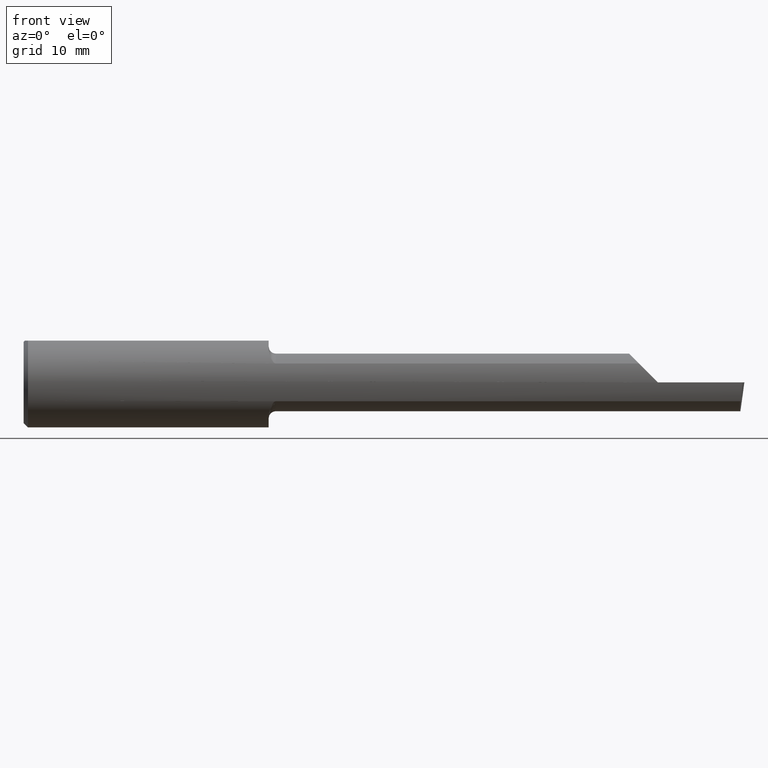
[diagram: clean part render]
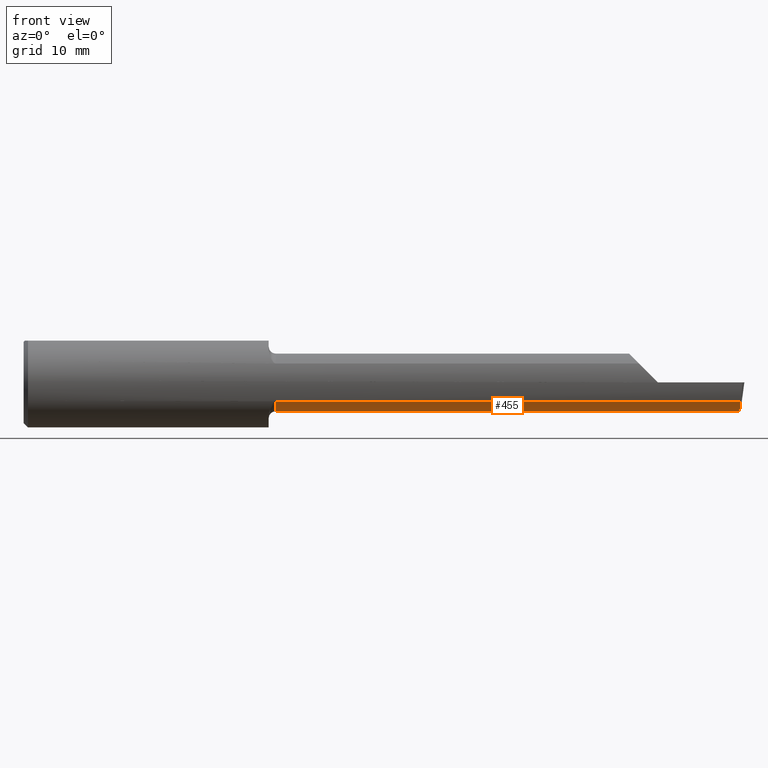
[diagram: same view with one face highlighted and labeled with its STEP entity id]
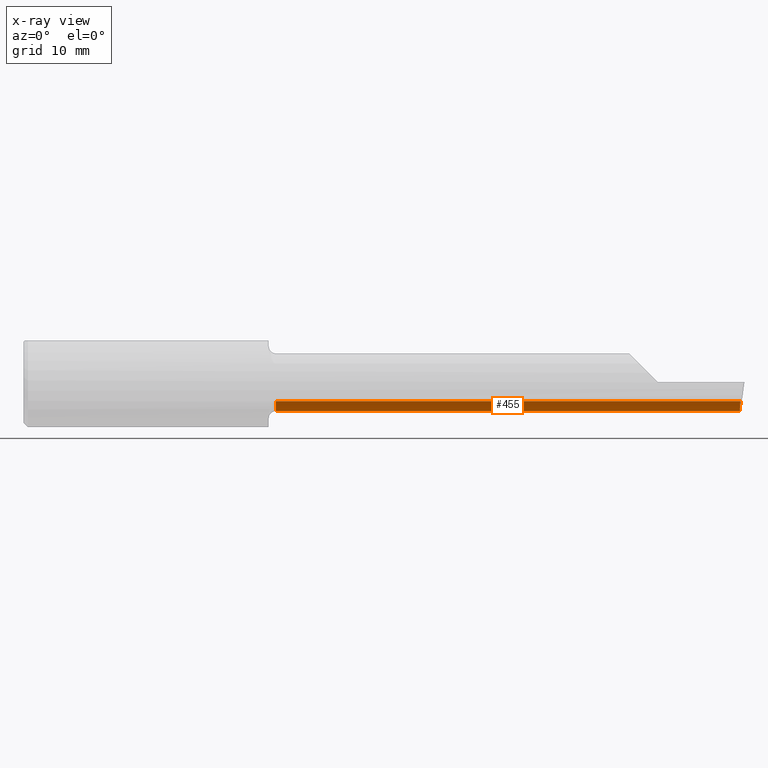
[diagram: x-ray of the same camera — body ghosted, the highlighted face saturated]
A machine part, front view. The second image highlights one B-rep face of the part: STEP entity #455.
The next image is the same camera in x-ray: the body ghosted, the highlighted face saturated — about 0% of this face is hidden behind the body in this view.
In plain terms, the highlighted cylindrical surface (edge-blend (fillet) strip) has radius 2.54 mm, axis along (-1, -0, -0).
Its self-contained STEP definition (entity closure, byte-faithful):
#42 =( BOUNDED_CURVE ( )  B_SPLINE_CURVE ( 3, ( #737, #87, #181, #862 ),
 .UNSPECIFIED., .F., .T. ) 
 B_SPLINE_CURVE_WITH_KNOTS ( ( 4, 4 ),
 ( 5.652899091607062054, 6.510504952072833085 ),
 .UNSPECIFIED. ) 
 CURVE ( )  GEOMETRIC_REPRESENTATION_ITEM ( )  RATIONAL_B_SPLINE_CURVE ( ( 1.000000000000000000, 0.9396427478180651160, 0.9396427478180651160, 1.000000000000000000 ) ) 
 REPRESENTATION_ITEM ( '' )  );
#55 = ORIENTED_EDGE ( 'NONE', *, *, #57, .T. ) ;
#57 = EDGE_CURVE ( 'NONE', #655, #563, #652, .T. ) ;
#70 = AXIS2_PLACEMENT_3D ( 'NONE', #401, #960, #422 ) ;
#71 = DIRECTION ( 'NONE',  ( 0.000000000000000000, 0.000000000000000000, 1.000000000000000000 ) ) ;
#75 = CARTESIAN_POINT ( 'NONE',  ( 21.59000000000000341, -1.678939999999999433, 0.000000000000000000 ) ) ;
#82 = CARTESIAN_POINT ( 'NONE',  ( 39.11599999999999966, -3.599887049924355154, -1.661794942640913098 ) ) ;
#87 = CARTESIAN_POINT ( 'NONE',  ( 63.11601083078465990, -3.109668751225285632, -2.228461364918260301 ) ) ;
#93 = LINE ( 'NONE', #285, #665 ) ;
#110 = CARTESIAN_POINT ( 'NONE',  ( 63.11822282597120903, -1.678939999999999433, -2.540000000000000480 ) ) ;
#126 = ORIENTED_EDGE ( 'NONE', *, *, #1040, .F. ) ;
#129 = DIRECTION ( 'NONE',  ( -1.000000000000000000, -0.000000000000000000, -0.000000000000000000 ) ) ;
#181 = CARTESIAN_POINT ( 'NONE',  ( 63.09847522314641566, -2.428222866824018222, -2.540000000000000480 ) ) ;
#183 = DIRECTION ( 'NONE',  ( -1.000000000000000000, -0.000000000000000000, -0.000000000000000000 ) ) ;
#205 = CARTESIAN_POINT ( 'NONE',  ( 21.59000000000000341, -1.678939999999999211, -2.540000000000000036 ) ) ;
#250 = VERTEX_POINT ( 'NONE', #307 ) ;
#285 = CARTESIAN_POINT ( 'NONE',  ( 63.50000000000002842, -1.678939999999999433, -2.540000000000000480 ) ) ;
#302 = VECTOR ( 'NONE', #183, 1000.000000000000000 ) ;
#307 = CARTESIAN_POINT ( 'NONE',  ( 56.64199999999999591, -1.678939999999999433, -2.540000000000000480 ) ) ;
#401 = CARTESIAN_POINT ( 'NONE',  ( 22.22500000000000497, -1.678939999999999433, 0.000000000000000000 ) ) ;
#422 = DIRECTION ( 'NONE',  ( 0.000000000000000000, 0.000000000000000000, -1.000000000000000000 ) ) ;
#446 = ORIENTED_EDGE ( 'NONE', *, *, #546, .F. ) ;
#455 = ADVANCED_FACE ( 'NONE', ( #1024 ), #458, .T. ) ;
#458 = CYLINDRICAL_SURFACE ( 'NONE', #932, 2.540000000000000036 ) ;
#546 = EDGE_CURVE ( 'NONE', #655, #713, #42, .T. ) ;
#563 = VERTEX_POINT ( 'NONE', #664 ) ;
#618 = EDGE_CURVE ( 'NONE', #563, #899, #749, .T. ) ;
#650 = EDGE_CURVE ( 'NONE', #250, #899, #704, .T. ) ;
#652 = LINE ( 'NONE', #82, #302 ) ;
#655 = VERTEX_POINT ( 'NONE', #1069 ) ;
#664 = CARTESIAN_POINT ( 'NONE',  ( 22.22500000000000497, -3.599887049924355154, -1.661794942640913098 ) ) ;
#665 = VECTOR ( 'NONE', #786, 1000.000000000000000 ) ;
#670 = ORIENTED_EDGE ( 'NONE', *, *, #650, .F. ) ;
#704 = LINE ( 'NONE', #205, #830 ) ;
#713 = VERTEX_POINT ( 'NONE', #110 ) ;
#737 = CARTESIAN_POINT ( 'NONE',  ( 63.16765444560877540, -3.599887049924355598, -1.661794942640913542 ) ) ;
#744 = DIRECTION ( 'NONE',  ( -1.000000000000000000, -0.000000000000000000, -0.000000000000000000 ) ) ;
#749 = CIRCLE ( 'NONE', #70, 2.540000000000000036 ) ;
#786 = DIRECTION ( 'NONE',  ( -1.000000000000000000, -0.000000000000000000, -0.000000000000000000 ) ) ;
#830 = VECTOR ( 'NONE', #129, 1000.000000000000000 ) ;
#862 = CARTESIAN_POINT ( 'NONE',  ( 63.11822282597120903, -1.678939999999999433, -2.540000000000000480 ) ) ;
#899 = VERTEX_POINT ( 'NONE', #1130 ) ;
#932 = AXIS2_PLACEMENT_3D ( 'NONE', #75, #744, #71 ) ;
#941 = ORIENTED_EDGE ( 'NONE', *, *, #618, .T. ) ;
#960 = DIRECTION ( 'NONE',  ( 1.000000000000000000, 0.000000000000000000, 0.000000000000000000 ) ) ;
#1024 = FACE_OUTER_BOUND ( 'NONE', #1143, .T. ) ;
#1040 = EDGE_CURVE ( 'NONE', #713, #250, #93, .T. ) ;
#1069 = CARTESIAN_POINT ( 'NONE',  ( 63.16765444560877540, -3.599887049924355598, -1.661794942640913542 ) ) ;
#1130 = CARTESIAN_POINT ( 'NONE',  ( 22.22500000000000497, -1.678939999999999211, -2.540000000000000036 ) ) ;
#1143 = EDGE_LOOP ( 'NONE', ( #670, #126, #446, #55, #941 ) ) ;